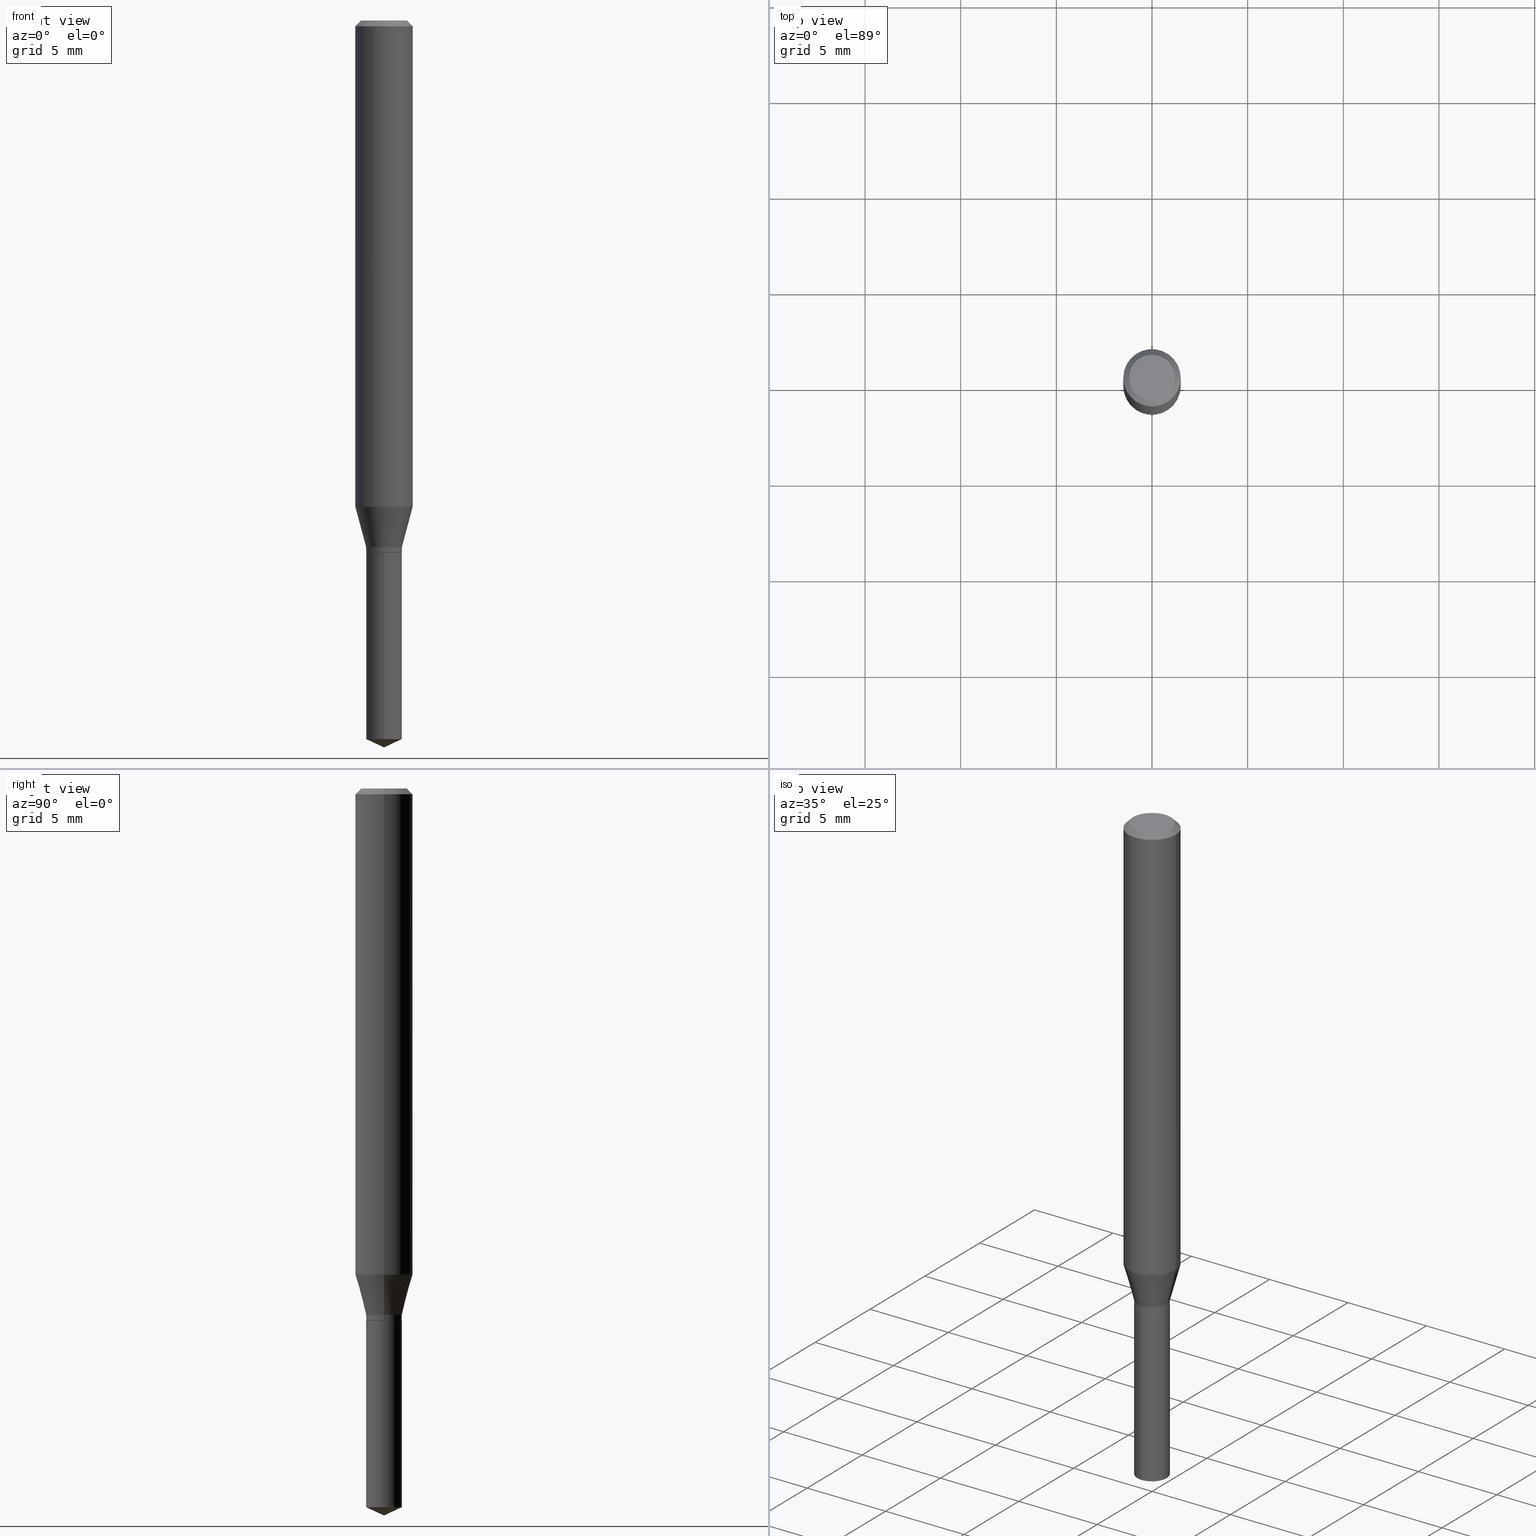
[diagram: canonical four-view strip — front | top / right | iso, engineering-drawing reading convention]
A machine part, canonical four-view strip (front | top / right | iso — engineering-drawing reading convention). The complete STEP part file that produces these views, byte-faithful:
ISO-10303-21;
HEADER;
FILE_DESCRIPTION (( 'STEP AP203' ),
    '1' );
FILE_NAME ('07929.STEP',
    '2024-04-24T06:28:03',
    ( '' ),
    ( '' ),
    'SwSTEP 2.0',
    'SolidWorks 2023',
    '' );
FILE_SCHEMA (( 'CONFIG_CONTROL_DESIGN' ));
ENDSEC;

DATA;
#1 = AXIS2_PLACEMENT_3D ( 'NONE', #204, #57, #483 ) ;
#2 = EDGE_LOOP ( 'NONE', ( #145, #464 ) ) ;
#3 = COORDINATED_UNIVERSAL_TIME_OFFSET ( 5, 0, .BEHIND. ) ;
#4 = EDGE_CURVE ( 'NONE', #159, #339, #353, .T. ) ;
#5 = APPROVAL_STATUS ( 'not_yet_approved' ) ;
#6 = CARTESIAN_POINT ( 'NONE',  ( 2.676565608369631794E-29, -3.821426325363822773E-15, -1.094499999999999806 ) ) ;
#7 =( CONVERSION_BASED_UNIT ( 'INCH', #340 ) LENGTH_UNIT ( ) NAMED_UNIT ( #66 ) );
#8 = ORIENTED_EDGE ( 'NONE', *, *, #97, .F. ) ;
#9 = APPLICATION_CONTEXT ( 'configuration controlled 3d designs of mechanical parts and assemblies' ) ;
#10 = DIRECTION ( 'NONE',  ( -2.445468806185136877E-29, 3.491481338843145188E-15, 1.000000000000000000 ) ) ;
#11 = CARTESIAN_POINT ( 'NONE',  ( 0.05905000000000011628, -3.905437893811055071E-15, -1.000461869531592107 ) ) ;
#12 = ORIENTED_EDGE ( 'NONE', *, *, #410, .T. ) ;
#13 = ORIENTED_EDGE ( 'NONE', *, *, #418, .F. ) ;
#14 = ORIENTED_EDGE ( 'NONE', *, *, #172, .T. ) ;
#15 = ADVANCED_FACE ( 'NONE', ( #122 ), #316, .T. ) ;
#16 = DIRECTION ( 'NONE',  ( -2.445458899330790108E-29, 3.491495526022433205E-15, 1.000000000000000000 ) ) ;
#17 = AXIS2_PLACEMENT_3D ( 'NONE', #447, #136, #65 ) ;
#18 = PERSON_AND_ORGANIZATION ( #381, #152 ) ;
#19 = EDGE_CURVE ( 'NONE', #46, #488, #119, .T. ) ;
#20 = DIRECTION ( 'NONE',  ( -0.7071067811865453523, 2.468850131082234184E-15, -0.7071067811865496822 ) ) ;
#21 = LINE ( 'NONE', #236, #428 ) ;
#22 = DIRECTION ( 'NONE',  ( -2.445458899330790108E-29, 3.491495526022433205E-15, 1.000000000000000000 ) ) ;
#23 = CIRCLE ( 'NONE', #143, 0.03679999999999999938 ) ;
#24 = VECTOR ( 'NONE', #171, 39.37007874015748143 ) ;
#25 = LINE ( 'NONE', #174, #75 ) ;
#26 = LINE ( 'NONE', #132, #24 ) ;
#27 = LINE ( 'NONE', #449, #215 ) ;
#28 = CONICAL_SURFACE ( 'NONE', #306, 84.42940631927464779, 1.134464013796317339 ) ;
#29 = VECTOR ( 'NONE', #361, 39.37007874015748143 ) ;
#30 = MECHANICAL_CONTEXT ( 'NONE', #9, 'mechanical' ) ;
#31 = DIRECTION ( 'NONE',  ( -2.445468806185136597E-29, 3.491481338843145583E-15, 1.000000000000000000 ) ) ;
#32 = EDGE_CURVE ( 'NONE', #268, #488, #415, .T. ) ;
#33 = VERTEX_POINT ( 'NONE', #435 ) ;
#34 = DIRECTION ( 'NONE',  ( -1.000000000000000000, 6.982962677686265922E-15, -4.876176775795935793E-29 ) ) ;
#35 = CARTESIAN_POINT ( 'NONE',  ( 0.03679999999999999938, -4.039993057175402909E-15, -1.083499999999999908 ) ) ;
#36 = EDGE_CURVE ( 'NONE', #459, #398, #378, .T. ) ;
#37 = CALENDAR_DATE ( 2024, 24, 4 ) ;
#38 = AXIS2_PLACEMENT_3D ( 'NONE', #100, #399, #61 ) ;
#39 = AXIS2_PLACEMENT_3D ( 'NONE', #350, #425, #227 ) ;
#40 = ADVANCED_FACE ( 'NONE', ( #388 ), #346, .T. ) ;
#41 = PERSON_AND_ORGANIZATION ( #381, #152 ) ;
#42 = DIRECTION ( 'NONE',  ( -2.445468806185136597E-29, 3.491481338843145583E-15, 1.000000000000000000 ) ) ;
#43 = ORIENTED_EDGE ( 'NONE', *, *, #167, .T. ) ;
#44 = EDGE_CURVE ( 'NONE', #297, #212, #127, .T. ) ;
#45 = DIRECTION ( 'NONE',  ( -2.445468806185136597E-29, 3.491481338843145583E-15, 1.000000000000000000 ) ) ;
#46 = VERTEX_POINT ( 'NONE', #11 ) ;
#47 = VECTOR ( 'NONE', #379, 39.37007874015748854 ) ;
#48 = CIRCLE ( 'NONE', #308, 0.03679999999999999938 ) ;
#49 = LINE ( 'NONE', #203, #29 ) ;
#50 = DIRECTION ( 'NONE',  ( 1.000000000000000000, -6.982962677686267499E-15, 4.876176775795935793E-29 ) ) ;
#51 = PRODUCT_RELATED_PRODUCT_CATEGORY ( 'detail', '', ( #150 ) ) ;
#52 = CARTESIAN_POINT ( 'NONE',  ( -0.05904999999999999832, -1.347588685686368461E-15, -0.01181000000000006871 ) ) ;
#53 = DIRECTION ( 'NONE',  ( -2.445458899330790108E-29, 3.491495526022433205E-15, 1.000000000000000000 ) ) ;
#54 = ORIENTED_EDGE ( 'NONE', *, *, #230, .F. ) ;
#55 = ORIENTED_EDGE ( 'NONE', *, *, #4, .T. ) ;
#56 = COORDINATED_UNIVERSAL_TIME_OFFSET ( 5, 0, .BEHIND. ) ;
#57 = DIRECTION ( 'NONE',  ( -2.438088387897960049E-29, 3.491481338843145188E-15, 1.000000000000000000 ) ) ;
#58 = CIRCLE ( 'NONE', #252, 0.03680000000000000632 ) ;
#59 = CC_DESIGN_APPROVAL ( #338, ( #120 ) ) ;
#60 = APPLICATION_CONTEXT ( 'configuration controlled 3d designs of mechanical parts and assemblies' ) ;
#61 = DIRECTION ( 'NONE',  ( -6.982962677686267499E-15, -1.000000000000000000, 3.520397390770440854E-15 ) ) ;
#62 = CARTESIAN_POINT ( 'NONE',  ( 3.616697529722304040E-29, -5.163696440053538926E-15, -1.478939878179896139 ) ) ;
#63 = CONICAL_SURFACE ( 'NONE', #184, 0.03629999999999999893, 0.7853981633974141952 ) ;
#64 = CARTESIAN_POINT ( 'NONE',  ( 4.132873053354867254E-48, -5.900647395337818946E-34, -1.690012582823346072E-19 ) ) ;
#65 = DIRECTION ( 'NONE',  ( 1.000000000000000000, -6.982962677686268288E-15, 0.000000000000000000 ) ) ;
#66 = DIMENSIONAL_EXPONENTS ( 1.000000000000000000, 0.000000000000000000, 0.000000000000000000, 0.000000000000000000, 0.000000000000000000, 0.000000000000000000, 0.000000000000000000 ) ;
#67 = APPLICATION_PROTOCOL_DEFINITION ( 'international standard', 'config_control_design', 1994, #9 ) ;
#68 = UNCERTAINTY_MEASURE_WITH_UNIT (LENGTH_MEASURE( 1.000000000000000082E-05 ), #7, 'distance_accuracy_value', 'NONE');
#69 = EDGE_CURVE ( 'NONE', #297, #398, #23, .T. ) ;
#70 = DIRECTION ( 'NONE',  ( -2.445468806185136597E-29, 3.491481338843145583E-15, 1.000000000000000000 ) ) ;
#71 = ORIENTED_EDGE ( 'NONE', *, *, #482, .F. ) ;
#72 = EDGE_CURVE ( 'NONE', #79, #149, #130, .T. ) ;
#73 = PLANE ( 'NONE',  #272 ) ;
#74 = CIRCLE ( 'NONE', #251, 0.03679999999999999938 ) ;
#75 = VECTOR ( 'NONE', #404, 39.37007874015748854 ) ;
#76 = DIRECTION ( 'NONE',  ( 1.000000000000000000, -6.982962677686270655E-15, 0.000000000000000000 ) ) ;
#77 = ORIENTED_EDGE ( 'NONE', *, *, #36, .F. ) ;
#78 = EDGE_LOOP ( 'NONE', ( #124, #234, #87, #71 ) ) ;
#79 = VERTEX_POINT ( 'NONE', #158 ) ;
#80 = PERSON_AND_ORGANIZATION_ROLE ( 'creator' ) ;
#81 = AXIS2_PLACEMENT_3D ( 'NONE', #269, #42, #307 ) ;
#82 = CC_DESIGN_APPROVAL ( #116, ( #367 ) ) ;
#83 = CARTESIAN_POINT ( 'NONE',  ( 2.888098660104663328E-31, -4.123439461173779030E-17, -0.01181000000000006871 ) ) ;
#84 = ORIENTED_EDGE ( 'NONE', *, *, #287, .T. ) ;
#85 = CARTESIAN_POINT ( 'NONE',  ( -0.03679999999999999938, -3.539870580905757435E-15, -1.083499999999999908 ) ) ;
#86 = CARTESIAN_POINT ( 'NONE',  ( -0.03679999999999999938, -3.521540303876831253E-15, -1.083499999999999908 ) ) ;
#87 = ORIENTED_EDGE ( 'NONE', *, *, #258, .T. ) ;
#88 = DIRECTION ( 'NONE',  ( -2.445468806185136597E-29, 3.491481338843145583E-15, 1.000000000000000000 ) ) ;
#89 = CYLINDRICAL_SURFACE ( 'NONE', #461, 0.03679999999999999938 ) ;
#90 = ORIENTED_EDGE ( 'NONE', *, *, #451, .T. ) ;
#91 = ADVANCED_FACE ( 'NONE', ( #426 ), #89, .T. ) ;
#92 = AXIS2_PLACEMENT_3D ( 'NONE', #443, #454, #115 ) ;
#93 = APPROVAL_DATE_TIME ( #423, #338 ) ;
#94 = ORIENTED_EDGE ( 'NONE', *, *, #287, .F. ) ;
#95 = ORIENTED_EDGE ( 'NONE', *, *, #4, .F. ) ;
#96 = ORIENTED_EDGE ( 'NONE', *, *, #448, .T. ) ;
#97 = EDGE_CURVE ( 'NONE', #149, #159, #163, .T. ) ;
#98 = CARTESIAN_POINT ( 'NONE',  ( -0.03629999999999999893, -3.560850085108795212E-15, -1.094499999999999806 ) ) ;
#99 = DIRECTION ( 'NONE',  ( -2.445468806185136597E-29, 3.491481338843145583E-15, 1.000000000000000000 ) ) ;
#100 = CARTESIAN_POINT ( 'NONE',  ( -9.261924752013118283E-28, 1.322368428517963298E-13, 37.87397874015748300 ) ) ;
#101 = DIRECTION ( 'NONE',  ( 2.445468806185136597E-29, -3.491481338843145583E-15, -1.000000000000000000 ) ) ;
#102 = DIRECTION ( 'NONE',  ( 1.000000000000000000, -6.982962677686268288E-15, 0.000000000000000000 ) ) ;
#103 = CARTESIAN_POINT ( 'NONE',  ( 0.04724000000000000421, -3.852183633974369345E-16, -3.380025165621689721E-19 ) ) ;
#104 = CC_DESIGN_DATE_AND_TIME_ASSIGNMENT ( #191, #125, ( #205 ) ) ;
#105 = PLANE ( 'NONE',  #1 ) ;
#106 = CLOSED_SHELL ( 'NONE', ( #343, #395, #40, #140, #91, #133, #309, #486, #292, #148, #377, #177 ) ) ;
#107 = CONICAL_SURFACE ( 'NONE', #374, 0.03629999999999999893, 0.7853981633974141952 ) ;
#108 = ADVANCED_FACE ( 'NONE', ( #430 ), #28, .T. ) ;
#109 = DIRECTION ( 'NONE',  ( -2.445468806185136597E-29, 3.491481338843145583E-15, 1.000000000000000000 ) ) ;
#110 = EDGE_CURVE ( 'NONE', #79, #159, #325, .T. ) ;
#111 = CARTESIAN_POINT ( 'NONE',  ( 2.649665451501595207E-29, -3.783020030636548117E-15, -1.083499999999999908 ) ) ;
#112 = ORIENTED_EDGE ( 'NONE', *, *, #330, .F. ) ;
#113 =( GEOMETRIC_REPRESENTATION_CONTEXT ( 3 ) GLOBAL_UNCERTAINTY_ASSIGNED_CONTEXT ( ( #68 ) ) GLOBAL_UNIT_ASSIGNED_CONTEXT ( ( #7, #147, #344 ) ) REPRESENTATION_CONTEXT ( 'NONE', 'WORKASPACE' ) );
#114 = DIRECTION ( 'NONE',  ( 1.000000000000000000, -6.982962677686268288E-15, 0.000000000000000000 ) ) ;
#115 = DIRECTION ( 'NONE',  ( 1.000000000000000000, -6.982962677686266711E-15, 0.000000000000000000 ) ) ;
#116 = APPROVAL ( #352, 'UNSPECIFIED' ) ;
#117 = ORIENTED_EDGE ( 'NONE', *, *, #44, .T. ) ;
#118 = PERSON_AND_ORGANIZATION ( #381, #152 ) ;
#119 = LINE ( 'NONE', #267, #336 ) ;
#120 = SECURITY_CLASSIFICATION ( '', '', #216 ) ;
#121 = CARTESIAN_POINT ( 'NONE',  ( 2.888098660104663328E-31, -4.123439461173779030E-17, -0.01181000000000006871 ) ) ;
#122 = FACE_OUTER_BOUND ( 'NONE', #144, .T. ) ;
#123 = CARTESIAN_POINT ( 'NONE',  ( 2.675342873966538993E-29, -3.819680584694400481E-15, -1.093999999999999861 ) ) ;
#124 = ORIENTED_EDGE ( 'NONE', *, *, #237, .F. ) ;
#125 = DATE_TIME_ROLE ( 'creation_date' ) ;
#126 = CARTESIAN_POINT ( 'NONE',  ( 2.649665451501595207E-29, -3.783020030636548117E-15, -1.083499999999999908 ) ) ;
#127 = LINE ( 'NONE', #86, #47 ) ;
#128 = EDGE_LOOP ( 'NONE', ( #412, #345, #8 ) ) ;
#129 = AXIS2_PLACEMENT_3D ( 'NONE', #414, #70, #138 ) ;
#130 = LINE ( 'NONE', #270, #392 ) ;
#131 = ORIENTED_EDGE ( 'NONE', *, *, #444, .F. ) ;
#132 = CARTESIAN_POINT ( 'NONE',  ( -0.03679999999999999938, 2.614797267597168640E-16, -1.810168113213805382E-30 ) ) ;
#133 = ADVANCED_FACE ( 'NONE', ( #277 ), #437, .T. ) ;
#134 = LINE ( 'NONE', #209, #164 ) ;
#135 = CC_DESIGN_DATE_AND_TIME_ASSIGNMENT ( #335, #263, ( #120 ) ) ;
#136 = DIRECTION ( 'NONE',  ( -2.445468806185136597E-29, 3.491481338843145583E-15, 1.000000000000000000 ) ) ;
#137 = AXIS2_PLACEMENT_3D ( 'NONE', #121, #422, #314 ) ;
#138 = DIRECTION ( 'NONE',  ( 1.000000000000000000, -6.982962677686266711E-15, 4.876176775795935793E-29 ) ) ;
#139 = MANIFOLD_SOLID_BREP ( 'Body-Move/Copy2[2]', #106 ) ;
#140 = ADVANCED_FACE ( 'NONE', ( #249 ), #359, .T. ) ;
#141 = AXIS2_PLACEMENT_3D ( 'NONE', #111, #109, #76 ) ;
#142 = ORIENTED_EDGE ( 'NONE', *, *, #32, .F. ) ;
#143 = AXIS2_PLACEMENT_3D ( 'NONE', #470, #45, #155 ) ;
#144 = EDGE_LOOP ( 'NONE', ( #185, #55, #457, #190 ) ) ;
#145 = ORIENTED_EDGE ( 'NONE', *, *, #167, .F. ) ;
#146 = APPLICATION_PROTOCOL_DEFINITION ( 'international standard', 'config_control_design', 1994, #60 ) ;
#147 =( NAMED_UNIT ( * ) PLANE_ANGLE_UNIT ( ) SI_UNIT ( $, .RADIAN. ) );
#148 = ADVANCED_FACE ( 'NONE', ( #294 ), #73, .F. ) ;
#149 = VERTEX_POINT ( 'NONE', #208 ) ;
#150 = PRODUCT ( '07929', '07929', '', ( #30 ) ) ;
#151 = ORIENTED_EDGE ( 'NONE', *, *, #213, .T. ) ;
#152 = ORGANIZATION ( 'UNSPECIFIED', 'UNSPECIFIED', '' ) ;
#153 = EDGE_CURVE ( 'NONE', #339, #33, #282, .T. ) ;
#154 = FACE_OUTER_BOUND ( 'NONE', #319, .T. ) ;
#155 = DIRECTION ( 'NONE',  ( 1.000000000000000000, -6.982962677686270655E-15, 0.000000000000000000 ) ) ;
#156 = PRODUCT_DEFINITION_SHAPE ( 'NONE', 'NONE',  #205 ) ;
#157 = VERTEX_POINT ( 'NONE', #182 ) ;
#158 = CARTESIAN_POINT ( 'NONE',  ( 3.658651059288794515E-29, -5.223626456482161457E-15, -1.496099999999999985 ) ) ;
#159 = VERTEX_POINT ( 'NONE', #452 ) ;
#160 = CARTESIAN_POINT ( 'NONE',  ( -9.261924752013118283E-28, 1.322368428517963298E-13, 37.87397874015748300 ) ) ;
#161 = EDGE_LOOP ( 'NONE', ( #380, #303, #397, #77 ) ) ;
#162 = APPROVAL_ROLE ( '' ) ;
#163 = CIRCLE ( 'NONE', #238, 0.03680000000000000632 ) ;
#164 = VECTOR ( 'NONE', #20, 39.37007874015748143 ) ;
#165 = CARTESIAN_POINT ( 'NONE',  ( 2.676565608369631794E-29, -3.821426325363822773E-15, -1.094499999999999806 ) ) ;
#166 = CARTESIAN_POINT ( 'NONE',  ( 2.676565608369631794E-29, -3.821426325363822773E-15, -1.094499999999999806 ) ) ;
#167 = EDGE_CURVE ( 'NONE', #157, #420, #295, .T. ) ;
#168 = DATE_AND_TIME ( #320, #386 ) ;
#169 = CARTESIAN_POINT ( 'NONE',  ( 2.676565608369631794E-29, -3.821426325363822773E-15, -1.094499999999999806 ) ) ;
#170 = FACE_OUTER_BOUND ( 'NONE', #2, .T. ) ;
#171 = DIRECTION ( 'NONE',  ( -2.445468806185136877E-29, 3.491481338843145188E-15, 1.000000000000000000 ) ) ;
#172 = EDGE_CURVE ( 'NONE', #398, #297, #74, .T. ) ;
#173 = LOCAL_TIME ( 2, 28, 3.000000000000000000, #369 ) ;
#174 = CARTESIAN_POINT ( 'NONE',  ( -0.03629999999999999893, -3.563499312282905625E-15, -1.094499999999999806 ) ) ;
#175 = FACE_OUTER_BOUND ( 'NONE', #342, .T. ) ;
#176 = ADVANCED_FACE ( 'NONE', ( #279 ), #467, .F. ) ;
#177 = ADVANCED_FACE ( 'NONE', ( #276 ), #63, .T. ) ;
#178 = DIRECTION ( 'NONE',  ( 1.000000000000000000, -6.982962677686270655E-15, 0.000000000000000000 ) ) ;
#179 = APPROVAL_PERSON_ORGANIZATION ( #41, #210, #373 ) ;
#180 = DIRECTION ( 'NONE',  ( -6.982962677686265922E-15, -1.000000000000000000, 3.711749991391662277E-15 ) ) ;
#181 = DIRECTION ( 'NONE',  ( -2.445468806185136597E-29, 3.491481338843145583E-15, 1.000000000000000000 ) ) ;
#182 = CARTESIAN_POINT ( 'NONE',  ( 0.03629999999999999893, -4.074907870563833769E-15, -1.094499999999999806 ) ) ;
#183 = DIRECTION ( 'NONE',  ( 0.2588190451025211836, 1.565188264969622559E-15, 0.9659258262890679791 ) ) ;
#184 = AXIS2_PLACEMENT_3D ( 'NONE', #165, #433, #102 ) ;
#185 = ORIENTED_EDGE ( 'NONE', *, *, #97, .T. ) ;
#186 = ORIENTED_EDGE ( 'NONE', *, *, #354, .F. ) ;
#187 = LOCAL_TIME ( 2, 28, 3.000000000000000000, #419 ) ;
#188 = DATE_AND_TIME ( #37, #403 ) ;
#189 = CALENDAR_DATE ( 2024, 24, 4 ) ;
#190 = ORIENTED_EDGE ( 'NONE', *, *, #331, .F. ) ;
#191 = DATE_AND_TIME ( #376, #337 ) ;
#192 = VERTEX_POINT ( 'NONE', #394 ) ;
#193 = EDGE_LOOP ( 'NONE', ( #347, #84 ) ) ;
#194 = CARTESIAN_POINT ( 'NONE',  ( 0.03679999999999999938, -2.569730265388546437E-16, 1.794433053492904338E-30 ) ) ;
#195 = ORIENTED_EDGE ( 'NONE', *, *, #44, .F. ) ;
#196 = CIRCLE ( 'NONE', #17, 0.03629999999999999893 ) ;
#197 = DIRECTION ( 'NONE',  ( -2.445458899330790108E-29, 3.491495526022433599E-15, 1.000000000000000000 ) ) ;
#198 = DIRECTION ( 'NONE',  ( -6.982962677686265922E-15, -1.000000000000000000, 0.000000000000000000 ) ) ;
#199 = DIRECTION ( 'NONE',  ( 6.439704144417032720E-15, 0.9063077870366527122, 0.4226182617406934461 ) ) ;
#200 = AXIS2_PLACEMENT_3D ( 'NONE', #6, #465, #264 ) ;
#201 = CIRCLE ( 'NONE', #441, 0.04724000000000000421 ) ;
#202 = ADVANCED_FACE ( 'NONE', ( #283 ), #244, .T. ) ;
#203 = CARTESIAN_POINT ( 'NONE',  ( -2.569730265388278225E-16, -0.03680000000000382271, -1.094499999999999806 ) ) ;
#204 = CARTESIAN_POINT ( 'NONE',  ( 2.676565608369631794E-29, -3.821426325363822773E-15, -1.094499999999999806 ) ) ;
#205 = PRODUCT_DEFINITION ( 'UNKNOWN', '', #367, #222 ) ;
#206 = DIRECTION ( 'NONE',  ( -2.445458899330790108E-29, 3.491495526022433205E-15, 1.000000000000000000 ) ) ;
#207 = CARTESIAN_POINT ( 'NONE',  ( 2.676565608369631794E-29, -3.821426325363822773E-15, -1.094499999999999806 ) ) ;
#208 = CARTESIAN_POINT ( 'NONE',  ( -2.569730265388184054E-16, -0.03680000000000516192, -1.478939878179896139 ) ) ;
#209 = CARTESIAN_POINT ( 'NONE',  ( -0.05904999999999999832, 3.711095515056362547E-16, -0.01181000000000006871 ) ) ;
#210 = APPROVAL ( #413, 'UNSPECIFIED' ) ;
#211 = FACE_OUTER_BOUND ( 'NONE', #281, .T. ) ;
#212 = VERTEX_POINT ( 'NONE', #436 ) ;
#213 = EDGE_CURVE ( 'NONE', #370, #488, #21, .T. ) ;
#214 = AXIS2_PLACEMENT_3D ( 'NONE', #246, #485, #450 ) ;
#215 = VECTOR ( 'NONE', #266, 39.37007874015748854 ) ;
#216 = SECURITY_CLASSIFICATION_LEVEL ( 'unclassified' ) ;
#217 = DIRECTION ( 'NONE',  ( 0.000000000000000000, 0.000000000000000000, 1.000000000000000000 ) ) ;
#218 = CC_DESIGN_PERSON_AND_ORGANIZATION_ASSIGNMENT ( #290, #375, ( #367 ) ) ;
#219 = CYLINDRICAL_SURFACE ( 'NONE', #129, 0.05905000000000006077 ) ;
#220 = ORIENTED_EDGE ( 'NONE', *, *, #489, .F. ) ;
#221 = VECTOR ( 'NONE', #199, 39.37007874015749564 ) ;
#222 = DESIGN_CONTEXT ( 'detailed design', #60, 'design' ) ;
#223 = VECTOR ( 'NONE', #183, 39.37007874015748854 ) ;
#224 = DIRECTION ( 'NONE',  ( -2.445468806185136597E-29, 3.491481338843145583E-15, 1.000000000000000000 ) ) ;
#225 = CC_DESIGN_PERSON_AND_ORGANIZATION_ASSIGNMENT ( #458, #255, ( #150 ) ) ;
#226 = ADVANCED_BREP_SHAPE_REPRESENTATION ( '07929', ( #311, #139, #429 ), #113 ) ;
#227 = DIRECTION ( 'NONE',  ( 1.000000000000000000, -6.982962677686270655E-15, 0.000000000000000000 ) ) ;
#228 = DIRECTION ( 'NONE',  ( 1.000000000000000000, -6.982962677686266711E-15, 0.000000000000000000 ) ) ;
#229 = DIRECTION ( 'NONE',  ( 1.000000000000000000, 0.000000000000000000, 0.000000000000000000 ) ) ;
#230 = EDGE_CURVE ( 'NONE', #235, #370, #201, .T. ) ;
#231 = CARTESIAN_POINT ( 'NONE',  ( 0.000000000000000000, 0.000000000000000000, 0.000000000000000000 ) ) ;
#232 = ORIENTED_EDGE ( 'NONE', *, *, #237, .T. ) ;
#233 = APPROVAL_PERSON_ORGANIZATION ( #490, #338, #302 ) ;
#234 = ORIENTED_EDGE ( 'NONE', *, *, #390, .T. ) ;
#235 = VERTEX_POINT ( 'NONE', #291 ) ;
#236 = CARTESIAN_POINT ( 'NONE',  ( 0.05904999999999999832, -4.463468013801466955E-16, -0.01181000000000006871 ) ) ;
#237 = EDGE_CURVE ( 'NONE', #420, #192, #25, .T. ) ;
#238 = AXIS2_PLACEMENT_3D ( 'NONE', #351, #53, #198 ) ;
#239 = CIRCLE ( 'NONE', #296, 0.04724000000000000421 ) ;
#240 = EDGE_LOOP ( 'NONE', ( #186, #389, #487, #372 ) ) ;
#241 = DIRECTION ( 'NONE',  ( 1.000000000000000000, -6.982962677686270655E-15, 0.000000000000000000 ) ) ;
#242 = CARTESIAN_POINT ( 'NONE',  ( 2.888098660104663328E-31, -4.123439461173779030E-17, -0.01181000000000006871 ) ) ;
#243 = CARTESIAN_POINT ( 'NONE',  ( 8.265746106709734507E-48, -1.180129479067563789E-33, -3.380025165646692144E-19 ) ) ;
#244 = CONICAL_SURFACE ( 'NONE', #38, 84.42940631927464779, 1.134464013796317339 ) ;
#245 = CONICAL_SURFACE ( 'NONE', #416, 0.05904999999999999832, 0.7853981633974452814 ) ;
#246 = CARTESIAN_POINT ( 'NONE',  ( 0.000000000000000000, 0.000000000000000000, 0.000000000000000000 ) ) ;
#247 = ORIENTED_EDGE ( 'NONE', *, *, #489, .T. ) ;
#248 = DIRECTION ( 'NONE',  ( 0.7071067811865453523, -7.319954787623248157E-15, -0.7071067811865496822 ) ) ;
#249 = FACE_OUTER_BOUND ( 'NONE', #463, .T. ) ;
#250 = EDGE_LOOP ( 'NONE', ( #391, #54, #427, #300 ) ) ;
#251 = AXIS2_PLACEMENT_3D ( 'NONE', #126, #442, #241 ) ;
#252 = AXIS2_PLACEMENT_3D ( 'NONE', #62, #206, #478 ) ;
#253 = CARTESIAN_POINT ( 'NONE',  ( 2.675342873966538993E-29, -3.819680584694400481E-15, -1.093999999999999861 ) ) ;
#254 = PERSON_AND_ORGANIZATION_ROLE ( 'classification_officer' ) ;
#255 = PERSON_AND_ORGANIZATION_ROLE ( 'design_owner' ) ;
#256 = ADVANCED_FACE ( 'NONE', ( #211 ), #329, .T. ) ;
#257 = PERSON_AND_ORGANIZATION ( #381, #152 ) ;
#258 = EDGE_CURVE ( 'NONE', #157, #459, #27, .T. ) ;
#259 = ORIENTED_EDGE ( 'NONE', *, *, #406, .F. ) ;
#260 = ORIENTED_EDGE ( 'NONE', *, *, #72, .T. ) ;
#261 = COORDINATED_UNIVERSAL_TIME_OFFSET ( 5, 0, .BEHIND. ) ;
#262 = CARTESIAN_POINT ( 'NONE',  ( 8.265746106709734507E-48, -1.180129479067563789E-33, -3.380025165646692144E-19 ) ) ;
#263 = DATE_TIME_ROLE ( 'classification_date' ) ;
#264 = DIRECTION ( 'NONE',  ( -6.982962677686265922E-15, -1.000000000000000000, 3.711749991391662277E-15 ) ) ;
#265 = CIRCLE ( 'NONE', #431, 0.03679999999999999938 ) ;
#266 = DIRECTION ( 'NONE',  ( 0.7071067811865232589, -2.468850131082003836E-15, 0.7071067811865715536 ) ) ;
#267 = CARTESIAN_POINT ( 'NONE',  ( 0.05905000000000006077, -4.123439461173744764E-16, 2.879382386107503023E-30 ) ) ;
#268 = VERTEX_POINT ( 'NONE', #52 ) ;
#269 = CARTESIAN_POINT ( 'NONE',  ( 0.000000000000000000, 0.000000000000000000, 0.000000000000000000 ) ) ;
#270 = CARTESIAN_POINT ( 'NONE',  ( 3.658651059288795076E-29, -5.223626456482161457E-15, -1.496099999999999985 ) ) ;
#271 = ORIENTED_EDGE ( 'NONE', *, *, #331, .T. ) ;
#272 = AXIS2_PLACEMENT_3D ( 'NONE', #64, #408, #34 ) ;
#273 = CONICAL_SURFACE ( 'NONE', #39, 0.03679999999999999938, 0.2617993877991499074 ) ;
#274 = DIRECTION ( 'NONE',  ( -2.445468806185136877E-29, 3.491481338843145188E-15, 1.000000000000000000 ) ) ;
#275 = PERSON_AND_ORGANIZATION ( #381, #152 ) ;
#276 = FACE_OUTER_BOUND ( 'NONE', #78, .T. ) ;
#277 = FACE_OUTER_BOUND ( 'NONE', #240, .T. ) ;
#278 = CARTESIAN_POINT ( 'NONE',  ( 0.03679999999999999938, -4.039993057175402909E-15, -1.083499999999999908 ) ) ;
#279 = FACE_OUTER_BOUND ( 'NONE', #473, .T. ) ;
#280 = DIRECTION ( 'NONE',  ( 1.000000000000000000, -6.982962677686268288E-15, 0.000000000000000000 ) ) ;
#281 = EDGE_LOOP ( 'NONE', ( #95, #333, #271, #424 ) ) ;
#282 = CIRCLE ( 'NONE', #476, 0.03679999999999999938 ) ;
#283 = FACE_OUTER_BOUND ( 'NONE', #313, .T. ) ;
#284 = CARTESIAN_POINT ( 'NONE',  ( 0.03679999999999999938, -4.076653611233255273E-15, -1.093999999999999861 ) ) ;
#285 = DIRECTION ( 'NONE',  ( 1.000000000000000000, -6.982962677686266711E-15, 0.000000000000000000 ) ) ;
#286 = APPROVAL_PERSON_ORGANIZATION ( #275, #116, #162 ) ;
#287 = EDGE_CURVE ( 'NONE', #370, #235, #239, .T. ) ;
#288 = ORIENTED_EDGE ( 'NONE', *, *, #475, .F. ) ;
#289 = LINE ( 'NONE', #35, #223 ) ;
#290 = PERSON_AND_ORGANIZATION ( #381, #152 ) ;
#291 = CARTESIAN_POINT ( 'NONE',  ( -0.04724000000000000421, 3.504923541997677355E-16, -3.380025165670481712E-19 ) ) ;
#292 = ADVANCED_FACE ( 'NONE', ( #310 ), #469, .T. ) ;
#293 = PERSON_AND_ORGANIZATION_ROLE ( 'creator' ) ;
#294 = FACE_OUTER_BOUND ( 'NONE', #193, .T. ) ;
#295 = CIRCLE ( 'NONE', #402, 0.03629999999999999893 ) ;
#296 = AXIS2_PLACEMENT_3D ( 'NONE', #262, #417, #305 ) ;
#297 = VERTEX_POINT ( 'NONE', #85 ) ;
#298 = ORIENTED_EDGE ( 'NONE', *, *, #258, .F. ) ;
#299 = ORIENTED_EDGE ( 'NONE', *, *, #475, .T. ) ;
#300 = ORIENTED_EDGE ( 'NONE', *, *, #32, .T. ) ;
#301 = APPROVAL_DATE_TIME ( #188, #210 ) ;
#302 = APPROVAL_ROLE ( '' ) ;
#303 = ORIENTED_EDGE ( 'NONE', *, *, #354, .T. ) ;
#304 = ORIENTED_EDGE ( 'NONE', *, *, #19, .F. ) ;
#305 = DIRECTION ( 'NONE',  ( 1.000000000000000000, -6.982962677686266711E-15, 4.876185090822587894E-29 ) ) ;
#306 = AXIS2_PLACEMENT_3D ( 'NONE', #160, #22, #479 ) ;
#307 = DIRECTION ( 'NONE',  ( 1.000000000000000000, -6.982962677686266711E-15, 4.876176775795935793E-29 ) ) ;
#308 = AXIS2_PLACEMENT_3D ( 'NONE', #253, #411, #178 ) ;
#309 = ADVANCED_FACE ( 'NONE', ( #154 ), #273, .T. ) ;
#310 = FACE_OUTER_BOUND ( 'NONE', #250, .T. ) ;
#311 = MANIFOLD_SOLID_BREP ( 'Body-Move/Copy2[1]', #321 ) ;
#312 = DIRECTION ( 'NONE',  ( -6.328713451373378845E-15, -0.9063077870366498257, 0.4226182617406997188 ) ) ;
#313 = EDGE_LOOP ( 'NONE', ( #480, #260, #13 ) ) ;
#314 = DIRECTION ( 'NONE',  ( -1.000000000000000000, 6.982962677686266711E-15, 0.000000000000000000 ) ) ;
#315 = CALENDAR_DATE ( 2024, 24, 4 ) ;
#316 = CYLINDRICAL_SURFACE ( 'NONE', #200, 0.03679999999999999938 ) ;
#317 = CC_DESIGN_PERSON_AND_ORGANIZATION_ASSIGNMENT ( #118, #80, ( #205 ) ) ;
#318 = ORIENTED_EDGE ( 'NONE', *, *, #410, .F. ) ;
#319 = EDGE_LOOP ( 'NONE', ( #195, #382, #247, #288 ) ) ;
#320 = CALENDAR_DATE ( 2024, 24, 4 ) ;
#321 = CLOSED_SHELL ( 'NONE', ( #15, #108, #202, #256, #176 ) ) ;
#322 = AXIS2_PLACEMENT_3D ( 'NONE', #358, #438, #285 ) ;
#323 = DIRECTION ( 'NONE',  ( -1.000000000000000000, 6.982962677686266711E-15, 0.000000000000000000 ) ) ;
#324 = CARTESIAN_POINT ( 'NONE',  ( -0.05905000000000006077, 4.195754854663395916E-16, -2.904631170795524694E-30 ) ) ;
#325 = LINE ( 'NONE', #401, #221 ) ;
#326 = DIRECTION ( 'NONE',  ( -2.445468806185136597E-29, 3.491481338843145583E-15, 1.000000000000000000 ) ) ;
#327 = AXIS2_PLACEMENT_3D ( 'NONE', #169, #471, #439 ) ;
#328 = CARTESIAN_POINT ( 'NONE',  ( 2.446598293717172506E-29, -3.493093947693679756E-15, -1.000461869531592107 ) ) ;
#329 = CYLINDRICAL_SURFACE ( 'NONE', #348, 0.03679999999999999938 ) ;
#330 = EDGE_CURVE ( 'NONE', #459, #192, #265, .T. ) ;
#331 = EDGE_CURVE ( 'NONE', #149, #33, #49, .T. ) ;
#332 = VECTOR ( 'NONE', #472, 39.37007874015748143 ) ;
#333 = ORIENTED_EDGE ( 'NONE', *, *, #418, .T. ) ;
#334 = CARTESIAN_POINT ( 'NONE',  ( 0.000000000000000000, 0.000000000000000000, 0.000000000000000000 ) ) ;
#335 = DATE_AND_TIME ( #189, #173 ) ;
#336 = VECTOR ( 'NONE', #274, 39.37007874015748143 ) ;
#337 = LOCAL_TIME ( 2, 28, 3.000000000000000000, #261 ) ;
#338 = APPROVAL ( #5, 'UNSPECIFIED' ) ;
#339 = VERTEX_POINT ( 'NONE', #405 ) ;
#340 = LENGTH_MEASURE_WITH_UNIT ( LENGTH_MEASURE( 0.02539999999999999897 ), #468 );
#341 = ORIENTED_EDGE ( 'NONE', *, *, #153, .T. ) ;
#342 = EDGE_LOOP ( 'NONE', ( #43, #232, #112, #298 ) ) ;
#343 = ADVANCED_FACE ( 'NONE', ( #175 ), #107, .T. ) ;
#344 =( NAMED_UNIT ( * ) SI_UNIT ( $, .STERADIAN. ) SOLID_ANGLE_UNIT ( ) );
#345 = ORIENTED_EDGE ( 'NONE', *, *, #110, .T. ) ;
#346 = CYLINDRICAL_SURFACE ( 'NONE', #81, 0.05905000000000006077 ) ;
#347 = ORIENTED_EDGE ( 'NONE', *, *, #230, .T. ) ;
#348 = AXIS2_PLACEMENT_3D ( 'NONE', #207, #481, #363 ) ;
#349 = CC_DESIGN_PERSON_AND_ORGANIZATION_ASSIGNMENT ( #257, #254, ( #120 ) ) ;
#350 = CARTESIAN_POINT ( 'NONE',  ( 2.649665451501595207E-29, -3.783020030636548117E-15, -1.083499999999999908 ) ) ;
#351 = CARTESIAN_POINT ( 'NONE',  ( 3.616697529722304040E-29, -5.163696440053538926E-15, -1.478939878179896139 ) ) ;
#352 = APPROVAL_STATUS ( 'not_yet_approved' ) ;
#353 = LINE ( 'NONE', #460, #453 ) ;
#354 = EDGE_CURVE ( 'NONE', #192, #297, #26, .T. ) ;
#355 = APPROVAL_DATE_TIME ( #168, #116 ) ;
#356 = AXIS2_PLACEMENT_3D ( 'NONE', #166, #16, #474 ) ;
#357 = FACE_OUTER_BOUND ( 'NONE', #421, .T. ) ;
#358 = CARTESIAN_POINT ( 'NONE',  ( 2.888098660104663328E-31, -4.123439461173779030E-17, -0.01181000000000006871 ) ) ;
#359 = CONICAL_SURFACE ( 'NONE', #141, 0.03679999999999999938, 0.2617993877991499074 ) ;
#360 = VECTOR ( 'NONE', #10, 39.37007874015748143 ) ;
#361 = DIRECTION ( 'NONE',  ( -2.445458899330790108E-29, 3.491495526022433599E-15, 1.000000000000000000 ) ) ;
#362 = CARTESIAN_POINT ( 'NONE',  ( 2.676565608369631794E-29, -3.821426325363822773E-15, -1.094499999999999806 ) ) ;
#363 = DIRECTION ( 'NONE',  ( -6.982962677686265922E-15, -1.000000000000000000, 3.711749991391662277E-15 ) ) ;
#364 = FACE_OUTER_BOUND ( 'NONE', #466, .T. ) ;
#365 = DIRECTION ( 'NONE',  ( 1.000000000000000000, -6.982962677686266711E-15, 4.876185090822587894E-29 ) ) ;
#366 = AXIS2_PLACEMENT_3D ( 'NONE', #83, #224, #228 ) ;
#367 = PRODUCT_DEFINITION_FORMATION_WITH_SPECIFIED_SOURCE ( 'ANY', '', #150, .NOT_KNOWN. ) ;
#368 = DIRECTION ( 'NONE',  ( -2.445458899330790108E-29, 3.491495526022433205E-15, 1.000000000000000000 ) ) ;
#369 = COORDINATED_UNIVERSAL_TIME_OFFSET ( 5, 0, .BEHIND. ) ;
#370 = VERTEX_POINT ( 'NONE', #103 ) ;
#371 = CARTESIAN_POINT ( 'NONE',  ( 0.05904999999999999832, -4.535783407291118600E-16, -0.01181000000000006871 ) ) ;
#372 = ORIENTED_EDGE ( 'NONE', *, *, #69, .F. ) ;
#373 = APPROVAL_ROLE ( '' ) ;
#374 = AXIS2_PLACEMENT_3D ( 'NONE', #445, #99, #280 ) ;
#375 = PERSON_AND_ORGANIZATION_ROLE ( 'design_supplier' ) ;
#376 = CALENDAR_DATE ( 2024, 24, 4 ) ;
#377 = ADVANCED_FACE ( 'NONE', ( #170 ), #105, .F. ) ;
#378 = LINE ( 'NONE', #194, #360 ) ;
#379 = DIRECTION ( 'NONE',  ( -0.2588190451025211836, 5.211531920934547886E-15, 0.9659258262890679791 ) ) ;
#380 = ORIENTED_EDGE ( 'NONE', *, *, #330, .T. ) ;
#381 = PERSON ( 'UNSPECIFIED', 'UNSPECIFIED', 'UNSPECIFIED', ('UNSPECIFIED'), ('UNSPECIFIED'), ('UNSPECIFIED') ) ;
#382 = ORIENTED_EDGE ( 'NONE', *, *, #69, .T. ) ;
#383 = DIRECTION ( 'NONE',  ( 1.000000000000000000, -6.982962677686270655E-15, 0.000000000000000000 ) ) ;
#384 = DIRECTION ( 'NONE',  ( -2.445468806185136597E-29, 3.491481338843145583E-15, 1.000000000000000000 ) ) ;
#385 = ORIENTED_EDGE ( 'NONE', *, *, #451, .F. ) ;
#386 = LOCAL_TIME ( 2, 28, 3.000000000000000000, #56 ) ;
#387 = SHAPE_DEFINITION_REPRESENTATION ( #156, #226 ) ;
#388 = FACE_OUTER_BOUND ( 'NONE', #456, .T. ) ;
#389 = ORIENTED_EDGE ( 'NONE', *, *, #482, .T. ) ;
#390 = EDGE_CURVE ( 'NONE', #420, #157, #196, .T. ) ;
#391 = ORIENTED_EDGE ( 'NONE', *, *, #213, .F. ) ;
#392 = VECTOR ( 'NONE', #312, 39.37007874015748143 ) ;
#393 = AXIS2_PLACEMENT_3D ( 'NONE', #328, #326, #400 ) ;
#394 = CARTESIAN_POINT ( 'NONE',  ( -0.03679999999999999938, -3.539870580905757435E-15, -1.093999999999999861 ) ) ;
#395 = ADVANCED_FACE ( 'NONE', ( #357 ), #245, .T. ) ;
#396 = LINE ( 'NONE', #324, #332 ) ;
#397 = ORIENTED_EDGE ( 'NONE', *, *, #172, .F. ) ;
#398 = VERTEX_POINT ( 'NONE', #278 ) ;
#399 = DIRECTION ( 'NONE',  ( -2.445458899330790108E-29, 3.491495526022433205E-15, 1.000000000000000000 ) ) ;
#400 = DIRECTION ( 'NONE',  ( 1.000000000000000000, -6.982962677686266711E-15, 0.000000000000000000 ) ) ;
#401 = CARTESIAN_POINT ( 'NONE',  ( 3.658672935554494692E-29, -5.223595400746700193E-15, -1.496099999999999985 ) ) ;
#402 = AXIS2_PLACEMENT_3D ( 'NONE', #446, #181, #114 ) ;
#403 = LOCAL_TIME ( 2, 28, 3.000000000000000000, #3 ) ;
#404 = DIRECTION ( 'NONE',  ( -0.7071067811865232589, 7.493145998870265808E-15, 0.7071067811865715536 ) ) ;
#405 = CARTESIAN_POINT ( 'NONE',  ( 2.614797267597530530E-16, 0.03679999999999618299, -1.094500000000000028 ) ) ;
#406 = EDGE_CURVE ( 'NONE', #488, #268, #409, .T. ) ;
#407 = ORIENTED_EDGE ( 'NONE', *, *, #19, .T. ) ;
#408 = DIRECTION ( 'NONE',  ( 2.438088387897960049E-29, -3.491481338843145188E-15, -1.000000000000000000 ) ) ;
#409 = CIRCLE ( 'NONE', #322, 0.05904999999999999832 ) ;
#410 = EDGE_CURVE ( 'NONE', #46, #212, #477, .T. ) ;
#411 = DIRECTION ( 'NONE',  ( -2.445468806185136597E-29, 3.491481338843145583E-15, 1.000000000000000000 ) ) ;
#412 = ORIENTED_EDGE ( 'NONE', *, *, #72, .F. ) ;
#413 = APPROVAL_STATUS ( 'not_yet_approved' ) ;
#414 = CARTESIAN_POINT ( 'NONE',  ( 0.000000000000000000, 0.000000000000000000, 0.000000000000000000 ) ) ;
#415 = CIRCLE ( 'NONE', #366, 0.05904999999999999832 ) ;
#416 = AXIS2_PLACEMENT_3D ( 'NONE', #242, #101, #323 ) ;
#417 = DIRECTION ( 'NONE',  ( -2.445468806185136597E-29, 3.491481338843145583E-15, 1.000000000000000000 ) ) ;
#418 = EDGE_CURVE ( 'NONE', #159, #149, #58, .T. ) ;
#419 = COORDINATED_UNIVERSAL_TIME_OFFSET ( 5, 0, .BEHIND. ) ;
#420 = VERTEX_POINT ( 'NONE', #98 ) ;
#421 = EDGE_LOOP ( 'NONE', ( #94, #151, #440, #131 ) ) ;
#422 = DIRECTION ( 'NONE',  ( 2.445468806185136597E-29, -3.491481338843145583E-15, -1.000000000000000000 ) ) ;
#423 = DATE_AND_TIME ( #315, #187 ) ;
#424 = ORIENTED_EDGE ( 'NONE', *, *, #153, .F. ) ;
#425 = DIRECTION ( 'NONE',  ( -2.445468806185136597E-29, 3.491481338843145583E-15, 1.000000000000000000 ) ) ;
#426 = FACE_OUTER_BOUND ( 'NONE', #161, .T. ) ;
#427 = ORIENTED_EDGE ( 'NONE', *, *, #444, .T. ) ;
#428 = VECTOR ( 'NONE', #248, 39.37007874015748143 ) ;
#429 = AXIS2_PLACEMENT_3D ( 'NONE', #334, #217, #229 ) ;
#430 = FACE_OUTER_BOUND ( 'NONE', #128, .T. ) ;
#431 = AXIS2_PLACEMENT_3D ( 'NONE', #123, #88, #383 ) ;
#432 = CC_DESIGN_SECURITY_CLASSIFICATION ( #120, ( #367 ) ) ;
#433 = DIRECTION ( 'NONE',  ( -2.445468806185136597E-29, 3.491481338843145583E-15, 1.000000000000000000 ) ) ;
#434 = CC_DESIGN_PERSON_AND_ORGANIZATION_ASSIGNMENT ( #18, #293, ( #367 ) ) ;
#435 = CARTESIAN_POINT ( 'NONE',  ( -2.569730265388278225E-16, -0.03680000000000382271, -1.094499999999999806 ) ) ;
#436 = CARTESIAN_POINT ( 'NONE',  ( -0.05905000000000011628, -3.073518462227339869E-15, -1.000461869531592107 ) ) ;
#437 = CYLINDRICAL_SURFACE ( 'NONE', #214, 0.03679999999999999938 ) ;
#438 = DIRECTION ( 'NONE',  ( -2.445468806185136597E-29, 3.491481338843145583E-15, 1.000000000000000000 ) ) ;
#439 = DIRECTION ( 'NONE',  ( 6.982962677686265922E-15, 1.000000000000000000, -3.491495526022433599E-15 ) ) ;
#440 = ORIENTED_EDGE ( 'NONE', *, *, #406, .T. ) ;
#441 = AXIS2_PLACEMENT_3D ( 'NONE', #243, #31, #365 ) ;
#442 = DIRECTION ( 'NONE',  ( -2.445468806185136597E-29, 3.491481338843145583E-15, 1.000000000000000000 ) ) ;
#443 = CARTESIAN_POINT ( 'NONE',  ( 2.446598293717172506E-29, -3.493093947693679756E-15, -1.000461869531592107 ) ) ;
#444 = EDGE_CURVE ( 'NONE', #235, #268, #134, .T. ) ;
#445 = CARTESIAN_POINT ( 'NONE',  ( 2.676565608369631794E-29, -3.821426325363822773E-15, -1.094499999999999806 ) ) ;
#446 = CARTESIAN_POINT ( 'NONE',  ( 2.676565608369631794E-29, -3.821426325363822773E-15, -1.094499999999999806 ) ) ;
#447 = CARTESIAN_POINT ( 'NONE',  ( 2.676565608369631794E-29, -3.821426325363822773E-15, -1.094499999999999806 ) ) ;
#448 = EDGE_CURVE ( 'NONE', #33, #339, #484, .T. ) ;
#449 = CARTESIAN_POINT ( 'NONE',  ( 0.03629999999999999893, -4.074907870563833769E-15, -1.094499999999999806 ) ) ;
#450 = DIRECTION ( 'NONE',  ( 1.000000000000000000, -6.982962677686267499E-15, 4.876176775795935793E-29 ) ) ;
#451 = EDGE_CURVE ( 'NONE', #212, #268, #396, .T. ) ;
#452 = CARTESIAN_POINT ( 'NONE',  ( 2.614797267597529544E-16, 0.03679999999999482990, -1.478939878179896139 ) ) ;
#453 = VECTOR ( 'NONE', #197, 39.37007874015748143 ) ;
#454 = DIRECTION ( 'NONE',  ( -2.445468806185136597E-29, 3.491481338843145583E-15, 1.000000000000000000 ) ) ;
#455 = CC_DESIGN_APPROVAL ( #210, ( #205 ) ) ;
#456 = EDGE_LOOP ( 'NONE', ( #12, #90, #259, #304 ) ) ;
#457 = ORIENTED_EDGE ( 'NONE', *, *, #448, .F. ) ;
#458 = PERSON_AND_ORGANIZATION ( #381, #152 ) ;
#459 = VERTEX_POINT ( 'NONE', #284 ) ;
#460 = CARTESIAN_POINT ( 'NONE',  ( 2.614797267597435866E-16, 0.03679999999999618299, -1.094500000000000028 ) ) ;
#461 = AXIS2_PLACEMENT_3D ( 'NONE', #231, #384, #50 ) ;
#462 = CIRCLE ( 'NONE', #92, 0.05905000000000011628 ) ;
#463 = EDGE_LOOP ( 'NONE', ( #14, #117, #318, #220 ) ) ;
#464 = ORIENTED_EDGE ( 'NONE', *, *, #390, .F. ) ;
#465 = DIRECTION ( 'NONE',  ( -2.445458899330790108E-29, 3.491495526022433205E-15, 1.000000000000000000 ) ) ;
#466 = EDGE_LOOP ( 'NONE', ( #385, #299, #407, #142 ) ) ;
#467 = PLANE ( 'NONE',  #327 ) ;
#468 =( LENGTH_UNIT ( ) NAMED_UNIT ( * ) SI_UNIT ( $, .METRE. ) );
#469 = CONICAL_SURFACE ( 'NONE', #137, 0.05904999999999999832, 0.7853981633974452814 ) ;
#470 = CARTESIAN_POINT ( 'NONE',  ( 2.649665451501595207E-29, -3.783020030636548117E-15, -1.083499999999999908 ) ) ;
#471 = DIRECTION ( 'NONE',  ( 2.445458899330789267E-29, -3.491495526022433599E-15, -1.000000000000000000 ) ) ;
#472 = DIRECTION ( 'NONE',  ( -2.445468806185136877E-29, 3.491481338843145188E-15, 1.000000000000000000 ) ) ;
#473 = EDGE_LOOP ( 'NONE', ( #96, #341 ) ) ;
#474 = DIRECTION ( 'NONE',  ( -6.982962677686265922E-15, -1.000000000000000000, 3.711749991391662277E-15 ) ) ;
#475 = EDGE_CURVE ( 'NONE', #212, #46, #462, .T. ) ;
#476 = AXIS2_PLACEMENT_3D ( 'NONE', #362, #368, #180 ) ;
#477 = CIRCLE ( 'NONE', #393, 0.05905000000000011628 ) ;
#478 = DIRECTION ( 'NONE',  ( -6.982962677686265922E-15, -1.000000000000000000, 0.000000000000000000 ) ) ;
#479 = DIRECTION ( 'NONE',  ( -6.982962677686267499E-15, -1.000000000000000000, 3.520397390770440854E-15 ) ) ;
#480 = ORIENTED_EDGE ( 'NONE', *, *, #110, .F. ) ;
#481 = DIRECTION ( 'NONE',  ( -2.445458899330790108E-29, 3.491495526022433205E-15, 1.000000000000000000 ) ) ;
#482 = EDGE_CURVE ( 'NONE', #192, #459, #48, .T. ) ;
#483 = DIRECTION ( 'NONE',  ( 1.000000000000000000, -6.982962677686265922E-15, 4.876176775795935793E-29 ) ) ;
#484 = CIRCLE ( 'NONE', #356, 0.03679999999999999938 ) ;
#485 = DIRECTION ( 'NONE',  ( -2.445468806185136597E-29, 3.491481338843145583E-15, 1.000000000000000000 ) ) ;
#486 = ADVANCED_FACE ( 'NONE', ( #364 ), #219, .T. ) ;
#487 = ORIENTED_EDGE ( 'NONE', *, *, #36, .T. ) ;
#488 = VERTEX_POINT ( 'NONE', #371 ) ;
#489 = EDGE_CURVE ( 'NONE', #398, #46, #289, .T. ) ;
#490 = PERSON_AND_ORGANIZATION ( #381, #152 ) ;
ENDSEC;
END-ISO-10303-21;
